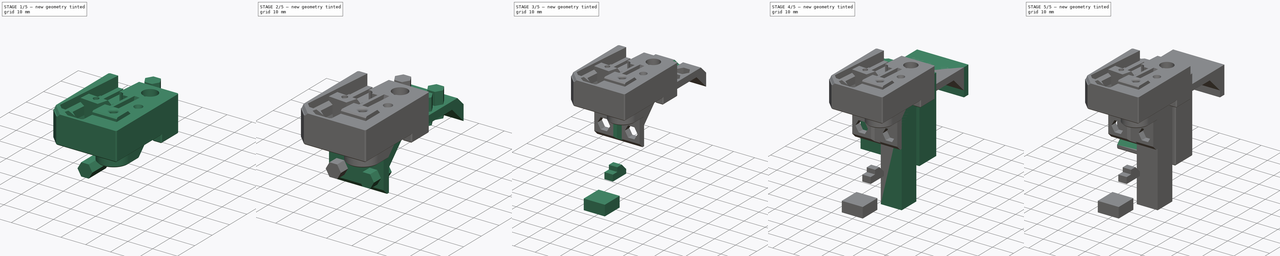
[diagram: build sequence overview — one tinted view per stage of 5, left to right]
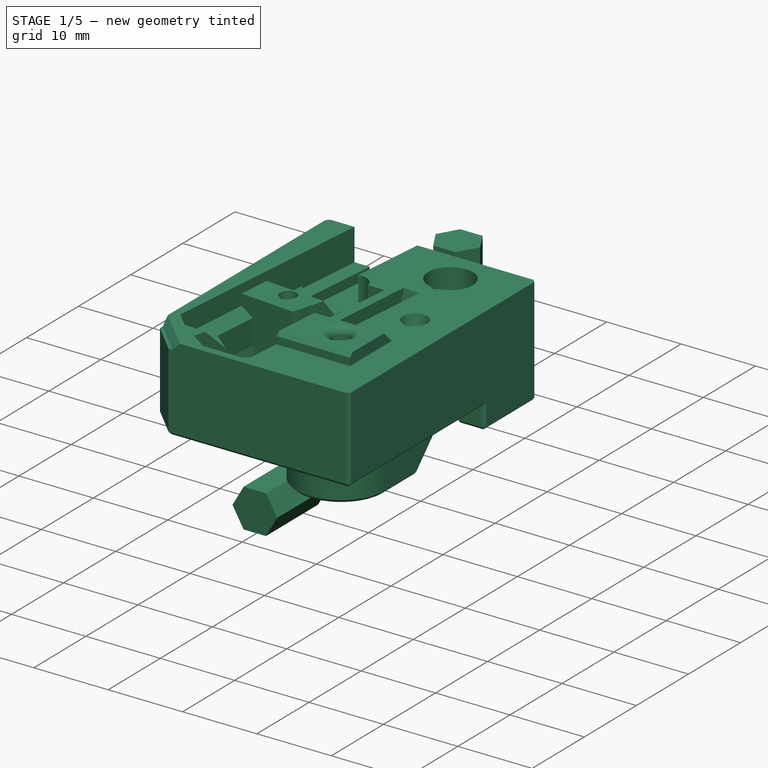
[diagram: stage 1 of 5 — iso view after this stage's code; geometry added in this stage tinted green]
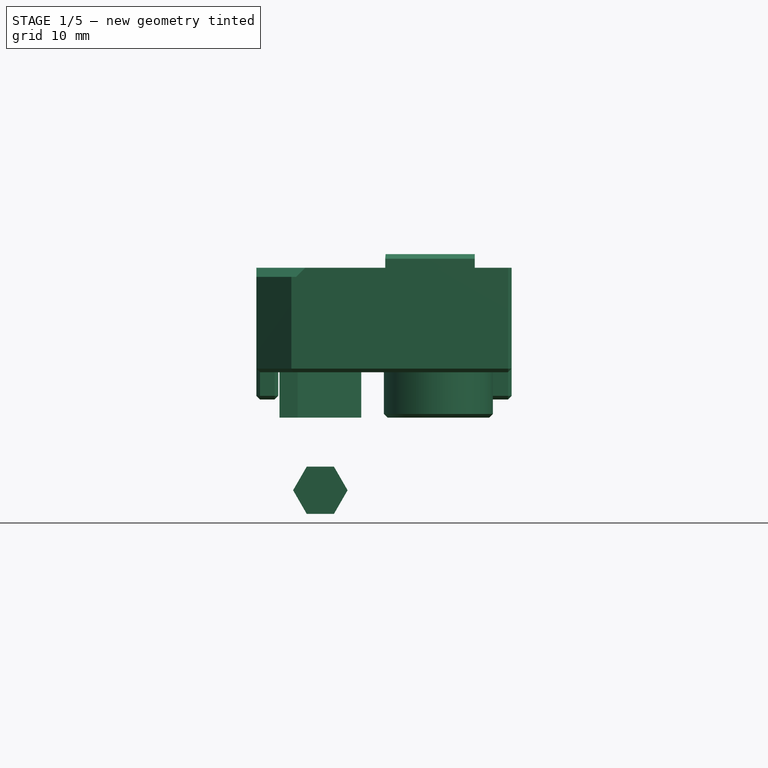
[diagram: stage 1 of 5 — front view after this stage's code; geometry added in this stage tinted green]
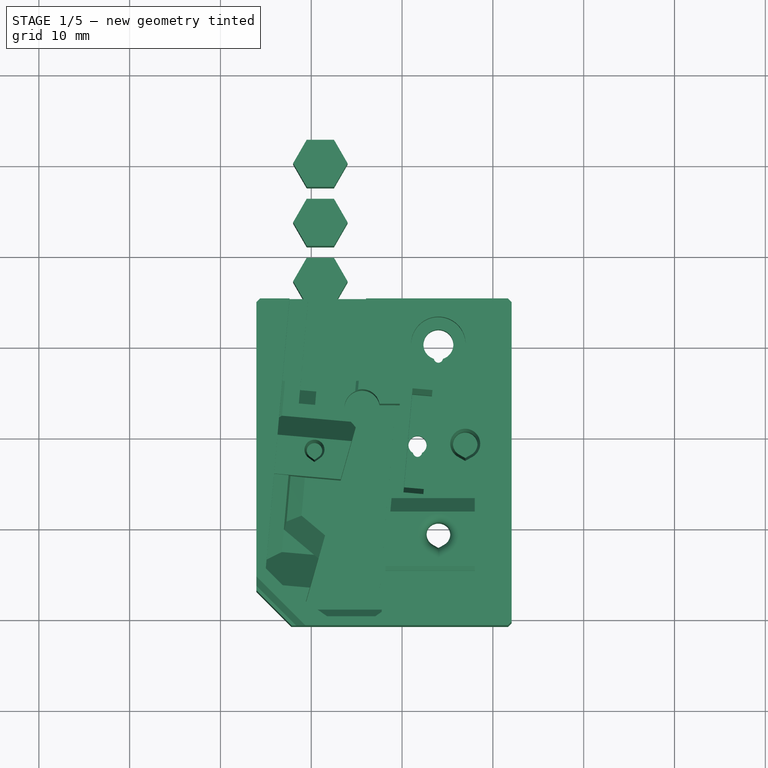
[diagram: stage 1 of 5 — top view after this stage's code; geometry added in this stage tinted green]
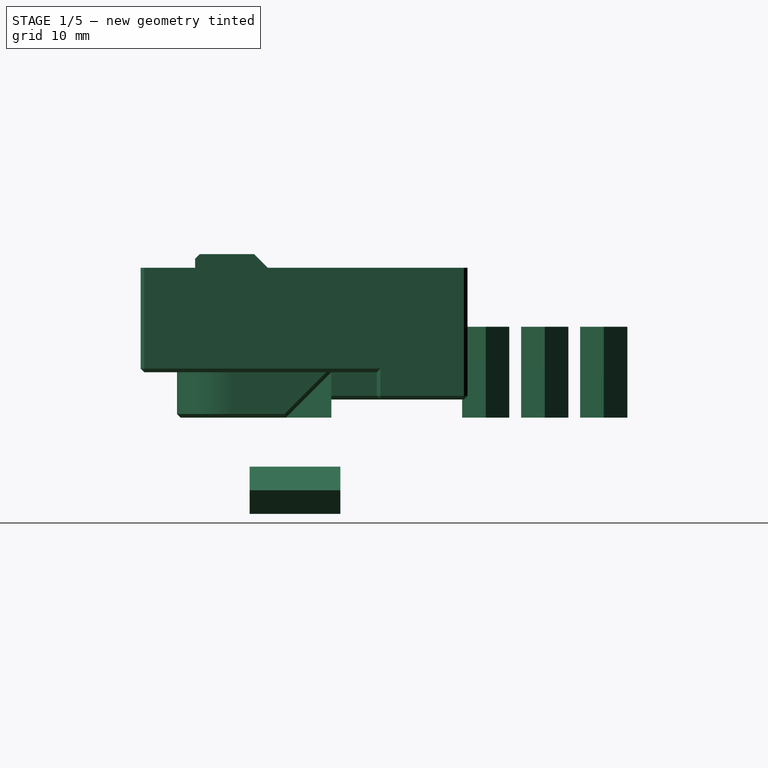
[diagram: stage 1 of 5 — right view after this stage's code; geometry added in this stage tinted green]
FCSTD DOCUMENT  (FreeCAD 0.18R14555 (Git shallow))
Label: filament-sensor-on-X
License: All rights reserved
LicenseURL: http://en.wikipedia.org/wiki/All_rights_reserved
objects: Part::Box×32, Part::Cut×26, Part::Chamfer×24, Part::Feature×19, Part::Cylinder×16, Part::MultiFuse×16, Sketcher::SketchObject×4, PartDesign::Pad×4, PartDesign::Body×4
note: 149 computed .brp shape members not serialized (recipe doc carries the construction recipe); baked Part::Feature solids carry a one-line shape summary decoded from their .brp

FEATURE [Part::Box] Box006  label="Cube006"
  AttacherType = Attacher::AttachEngine3D
  Height = 4
  Length = 11.5
  Placement = pos=(-20,-3,0) rot=(0,0,1;0rad)
  Width = 6
FEATURE [Part::Chamfer] Chamfer008
  Base = -> Box006
  Edges = 2 edges r=2: [Edge10,Edge12]
  Placement = pos=(4,0,3) rot=(0,0,1;0rad)
FEATURE [Part::Feature] Chamfer008001  label="Chamfer013003"
  Placement = pos=(3.5,0,3) rot=(0,0,1;0rad)
  shape: bbox 11.5 x 6 x 4 mm, 8 faces (baked)
FEATURE [Part::MultiFuse] Fusion002006
  Shapes = -> [Chamfer008001,Chamfer008]
FEATURE [Part::Box] Box015  label="Cube015"
  AttacherType = Attacher::AttachEngine3D
  Height = 10
  Length = 10
  Placement = pos=(-3.5,-6,5) rot=(0,0,1;0rad)
  Width = 10
FEATURE [Part::Chamfer] Chamfer013003  label="Chamfer013004"
  Base = -> Box015
  Edges = 1 edges r=5: [Edge4]
  Placement = pos=(-6,0,0) rot=(0,0,1;0rad)
FEATURE [Part::Cut] Cut001017003
  Base = -> Fusion002006
  Tool = -> Chamfer013003
FEATURE [PartDesign::Body] Body002004
  Group = -> [Sketch002,Pad002]
  Origin = -> Origin002
  Tip = -> Pad002
FEATURE [Part::Feature] Body002005
  Placement = pos=(4,-9,-8) rot=(1,0,0;1.5708rad)
  shape: bbox 6 x 10 x 5.196 mm, 8 faces (baked)
FEATURE [Part::Box] Box027  label="Cube027"
  AttacherType = Attacher::AttachEngine3D
  Height = 5
  Length = 9
  Placement = pos=(-13.5,-20.5,0) rot=(0,0,1;0rad)
  Width = 13
FEATURE [Part::Box] Box028  label="Cube028"
  AttacherType = Attacher::AttachEngine3D
  Height = 4
  Length = 14
  Placement = pos=(-17,-10,0) rot=(0,0,1;0rad)
  Width = 9
FEATURE [Part::Box] Box029  label="Cube029"
  AttacherType = Attacher::AttachEngine3D
  Height = 4
  Length = 3.86
  Placement = pos=(8.2,-5,2) rot=(0,0,1;0rad)
  Width = 10
FEATURE [Part::Box] Box034  label="Cube034"
  AttacherType = Attacher::AttachEngine3D
  Height = 10
  Length = 10
  Placement = pos=(-23.5,-4,0) rot=(0,0,1;0rad)
  Width = 10
FEATURE [Part::Cut] Cut001017037
  Base = -> Cut001017003
  Tool = -> Box034
FEATURE [Part::Chamfer] Chamfer013018  label="Chamfer013019"
  Base = -> Box027
  Edges = 1 edges r=7: [Edge5]
  Placement = pos=(0,3.5,0) rot=(0,0,1;0rad)
FEATURE [Part::Cut] Cut001017040
  Base = -> Chamfer013018
  Tool = -> Box028
FEATURE [PartDesign::Body] Body002008
  Group = -> [Sketch003,Pad003]
  Origin = -> Origin003
  Tip = -> Pad003
FEATURE [Part::Feature] Pad003001  label="Pad004"
  Placement = pos=(-9,7,0) rot=(0,0,1;0rad)
  shape: bbox 6 x 5.196 x 10 mm, 8 faces (baked)
FEATURE [Part::Feature] Pad003002  label="Pad005"
  Placement = pos=(-9,13.5,0) rot=(0,0,1;0rad)
  shape: bbox 6 x 5.196 x 10 mm, 8 faces (baked)
FEATURE [Part::Feature] Pad003003  label="Pad006"
  Placement = pos=(-9,20,0) rot=(0,0,1;0rad)
  shape: bbox 6 x 5.196 x 10 mm, 8 faces (baked)
FEATURE [Part::Feature] Pad003004  label="Pad007"
  Placement = pos=(-9,-9,-8) rot=(1,0,0;1.5708rad)
  shape: bbox 6 x 10 x 5.196 mm, 8 faces (baked)
FEATURE [Part::Box] Box038  label="Cube038"
  AttacherType = Attacher::AttachEngine3D
  Height = 6
  Length = 2.4
  Placement = pos=(-16.04,-17,2) rot=(0,0,1;0rad)
  Width = 22
FEATURE [Part::Chamfer] Chamfer013013  label="Chamfer013014"
  Base = -> Box029
  Edges = 8 edges r=0.4: [Edge1,Edge3,Edge4,Edge5,Edge7,Edge8,Edge9,Edge11]
FEATURE [Part::Chamfer] Chamfer013021  label="Chamfer013022"
  Base = -> Box038
  Edges = 8 edges r=0.4: [Edge1,Edge3,Edge4,Edge5,Edge7,Edge8,Edge9,Edge11]
FEATURE [Part::MultiFuse] Fusion002011011  label="filament-sensor-block"
  Shapes = -> [Cut001017001,Chamfer013021,Chamfer013013]
FEATURE [Part::MultiFuse] Fusion002011011011
  Shapes = -> [Pad003001,Pad003002,Pad003003,Pad003004]
FEATURE [Part::Cylinder] Cylinder015
  Angle = 360
  AttacherType = Attacher::AttachEngine3D
  Height = 6
  Placement = pos=(4,-23.8,0) rot=(0,0,1;0rad)
  Radius = 0.5
FEATURE [Part::Cylinder] Cylinder016
  Angle = 360
  AttacherType = Attacher::AttachEngine3D
  Height = 6
  Placement = pos=(4,-21,0) rot=(0,0,1;0rad)
  Radius = 5
FEATURE [Part::Cylinder] Cylinder017
  Angle = 360
  AttacherType = Attacher::AttachEngine3D
  Height = 6
  Placement = pos=(4,-21,0) rot=(0,0,1;0rad)
  Radius = 3.05
FEATURE [Part::MultiFuse] Fusion002011011012
  Shapes = -> [Fusion002011011,Cylinder016]
FEATURE [Part::Cut] Cut001017045
  Base = -> Fusion002011011012
  Tool = -> Cylinder017
FEATURE [Part::Cut] Cut001017046
  Base = -> Cut001017045
  Tool = -> Cylinder015
FEATURE [Part::Feature] Cut001017046001  label="Cut001017047"
  shape: bbox 28.11 x 36.01 x 18.01 mm, 190 faces (baked)
FEATURE [Part::Feature] Cut001017044001  label="Cut001017048"
  shape: bbox 21.5 x 47 x 21 mm, 96 faces (baked)
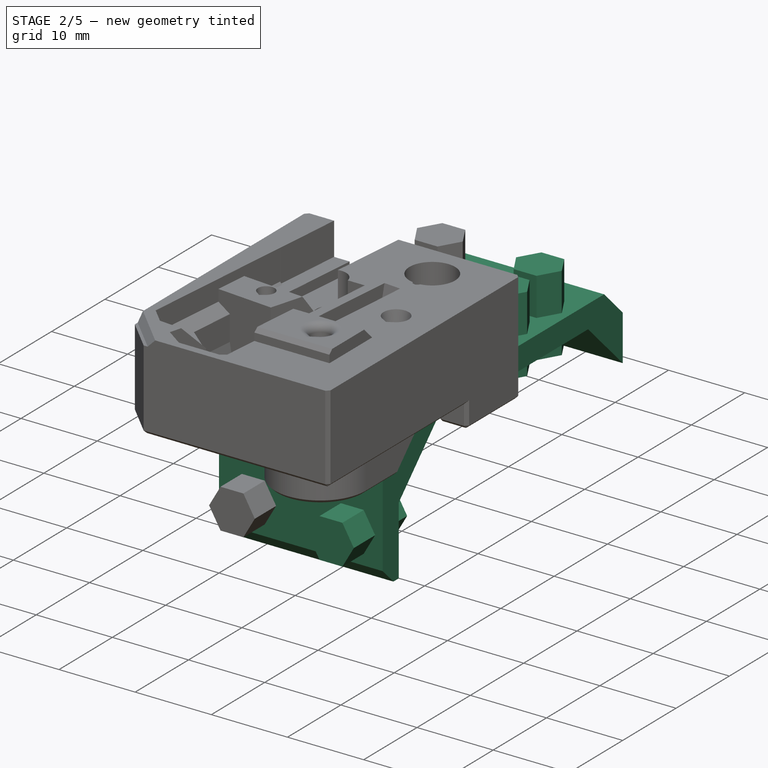
[diagram: stage 2 of 5 — iso view after this stage's code; geometry added in this stage tinted green]
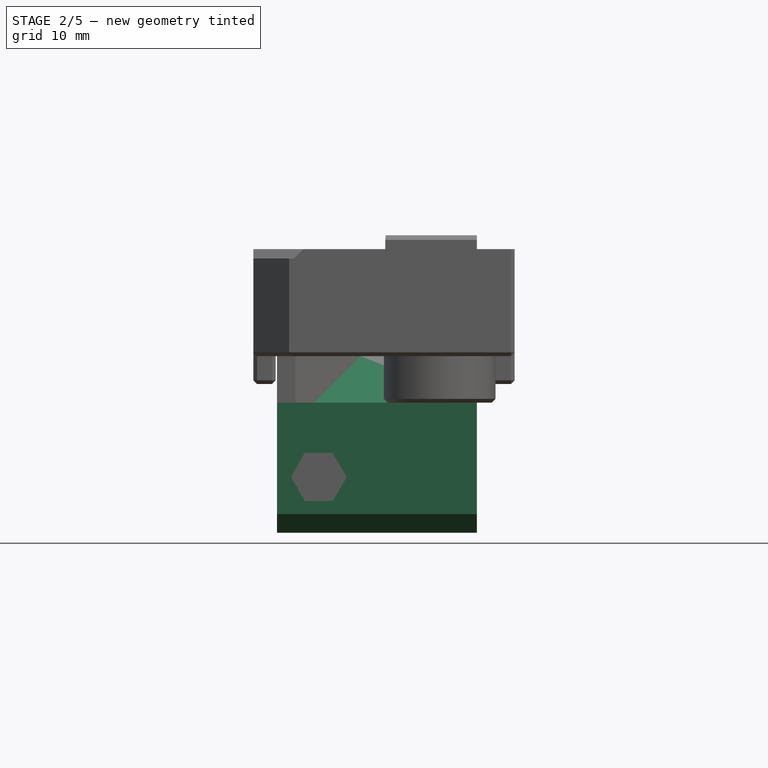
[diagram: stage 2 of 5 — front view after this stage's code; geometry added in this stage tinted green]
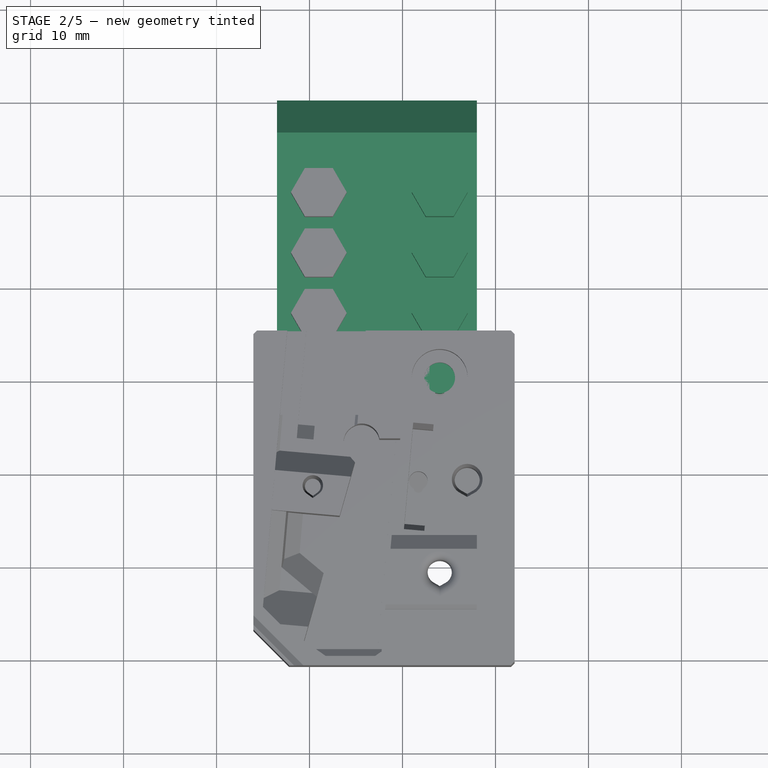
[diagram: stage 2 of 5 — top view after this stage's code; geometry added in this stage tinted green]
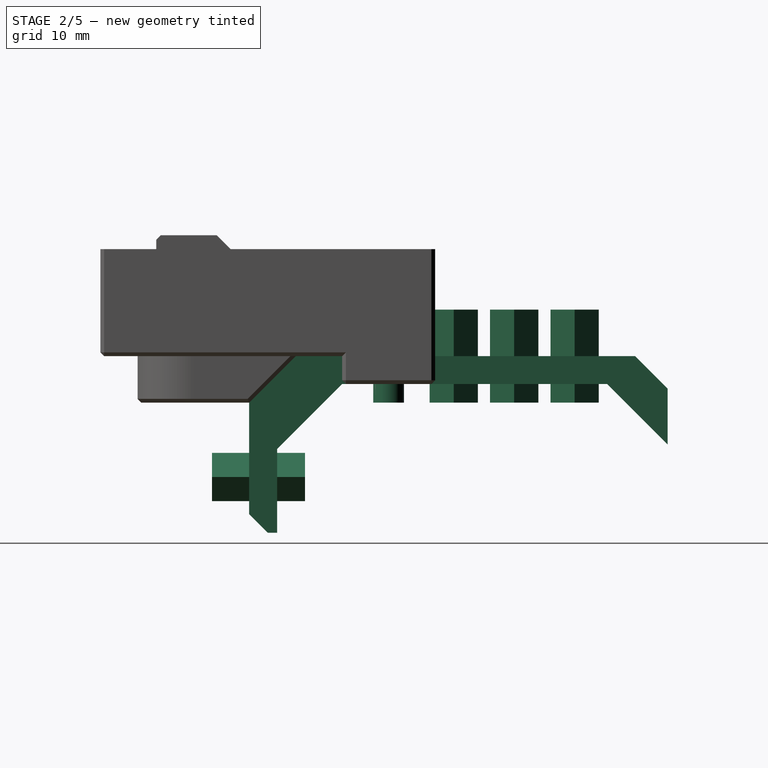
[diagram: stage 2 of 5 — right view after this stage's code; geometry added in this stage tinted green]
FEATURE [Part::Box] Box005  label="Cube005"
  AttacherType = Attacher::AttachEngine3D
  Height = 4
  Length = 8
  Placement = pos=(-4,-3,0) rot=(0,0,1;0rad)
  Width = 6
FEATURE [Part::Chamfer] Chamfer007
  Base = -> Box005
  Edges = 2 edges r=2: [Edge10,Edge12]
  Placement = pos=(4,0,3) rot=(0,0,1;0rad)
FEATURE [Part::Feature] Cut001017001  label="filament-sensor001"
  Placement = pos=(4,-21,5) rot=(1,0,0;1.5708rad)
  shape: bbox 28.11 x 36.01 x 18.44 mm, 193 faces (baked)
FEATURE [Part::Box] Box011  label="Cube011"
  AttacherType = Attacher::AttachEngine3D
  Height = 19
  Length = 24.5
  Placement = pos=(-16.5,-15,-14) rot=(0,0,1;0rad)
  Width = 19
FEATURE [Part::Box] Box012  label="Cube012"
  AttacherType = Attacher::AttachEngine3D
  Height = 19
  Length = 24.5
  Placement = pos=(-16.5,-12,-17) rot=(0,0,1;0rad)
  Width = 19
FEATURE [Part::Feature] Chamfer013001  label="Chamfer014"
  shape: bbox 24.5 x 29.5 x 13 mm, 9 faces (baked)
FEATURE [Part::Chamfer] Chamfer013002
  Base = -> Chamfer013001
  Edges = 1 edges r=7: [Edge18]
FEATURE [Part::Cylinder] Cylinder012
  Angle = 360
  AttacherType = Attacher::AttachEngine3D
  Height = 10
  Placement = pos=(4,0,0) rot=(0,0,1;0rad)
  Radius = 1.65
FEATURE [Part::Cylinder] Cylinder013
  Angle = 360
  AttacherType = Attacher::AttachEngine3D
  Height = 10
  Placement = pos=(2.5,0,0) rot=(0,0,1;0rad)
  Radius = 0.5
FEATURE [Part::MultiFuse] Fusion002007
  Shapes = -> [Cylinder012,Cylinder013]
FEATURE [Part::Box] Box017  label="Cube017"
  AttacherType = Attacher::AttachEngine3D
  Height = 10
  Length = 25
  Placement = pos=(-16.5,30,-8) rot=(0,0,1;0rad)
  Width = 10
FEATURE [Part::Cut] Cut001017026
  Base = -> Box011
  Tool = -> Box012
FEATURE [Part::Cut] Cut001017027
  Base = -> Chamfer013002
  Tool = -> Box017
FEATURE [Part::Box] Box031  label="Cube031"
  AttacherType = Attacher::AttachEngine3D
  Height = 53
  Length = 3
  Placement = pos=(-16.5,-21.5,-47) rot=(0,0,1;0rad)
  Width = 57
FEATURE [Part::Box] Box033  label="Cube033"
  AttacherType = Attacher::AttachEngine3D
  Height = 53
  Length = 3
  Placement = pos=(-16.5,-21.5,-47) rot=(0,0,1;0rad)
  Width = 57
FEATURE [Part::Cut] Cut001017028
  Base = -> Cut001017027
  Tool = -> Box031
FEATURE [Part::Cut] Cut001017030
  Base = -> Cut001017026
  Tool = -> Box033
FEATURE [Part::Chamfer] Chamfer013016  label="Chamfer013017"
  Base = -> Cut001017030
  Edges = 1 edges r=7: [Edge17]
FEATURE [Part::Chamfer] Chamfer013017  label="Chamfer013018"
  Base = -> Chamfer013016
  Edges = 1 edges r=5: [Edge17]
FEATURE [Part::Chamfer] Chamfer013023  label="Chamfer013024"
  Base = -> Chamfer013017
  Edges = 1 edges r=2: [Edge16]
FEATURE [Part::MultiFuse] Fusion002011011005
  Shapes = -> [Chamfer013023,Cut001017028]
FEATURE [Part::MultiFuse] Fusion002011011007
  Shapes = -> [Body002005,Fusion002007,Body002001,Body002002,Body002003]
FEATURE [Part::MultiFuse] Fusion002011011008
  Shapes = -> [Chamfer007,Cut001017040,Cut001017037]
FEATURE [Part::MultiFuse] Fusion002011011009
  Shapes = -> [Fusion002011011007]
FEATURE [Part::MultiFuse] Fusion002011011010
  Shapes = -> [Fusion002011011005,Fusion002011011008]
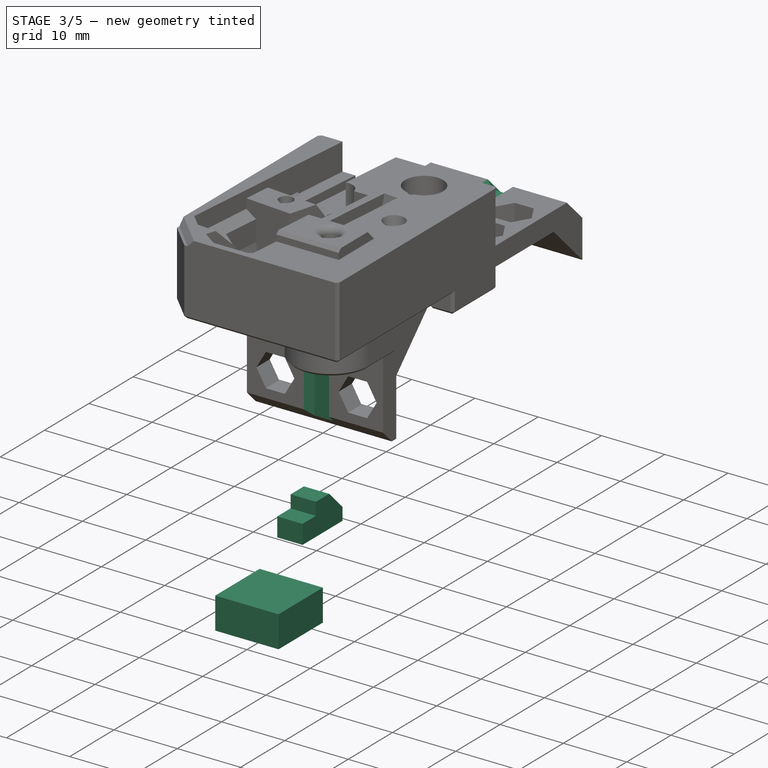
[diagram: stage 3 of 5 — iso view after this stage's code; geometry added in this stage tinted green]
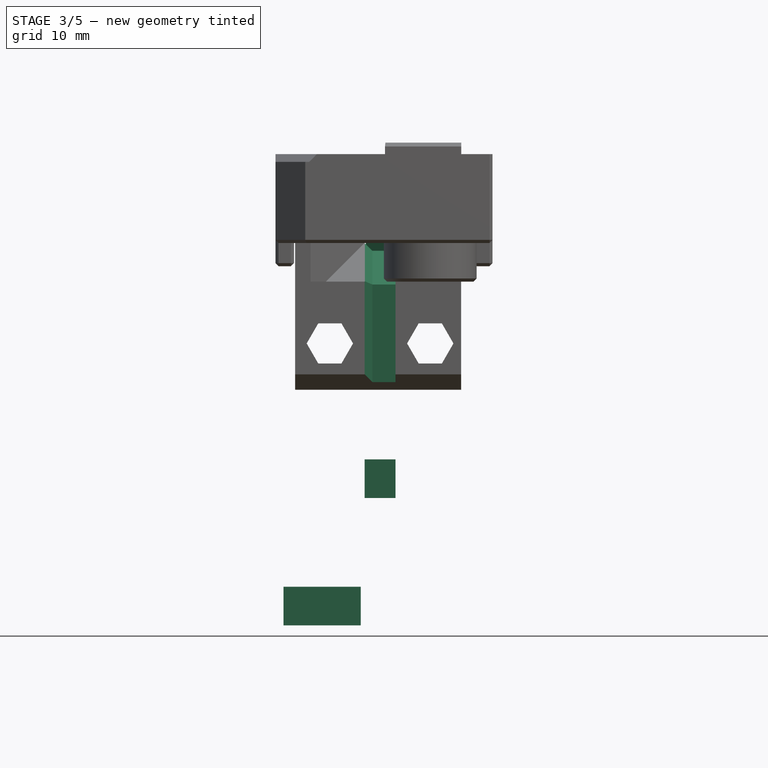
[diagram: stage 3 of 5 — front view after this stage's code; geometry added in this stage tinted green]
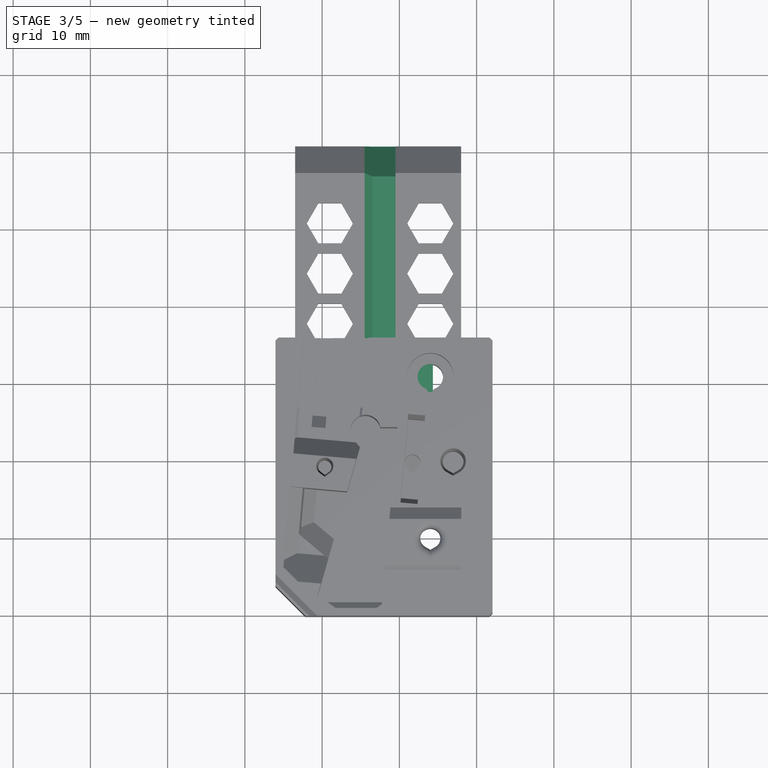
[diagram: stage 3 of 5 — top view after this stage's code; geometry added in this stage tinted green]
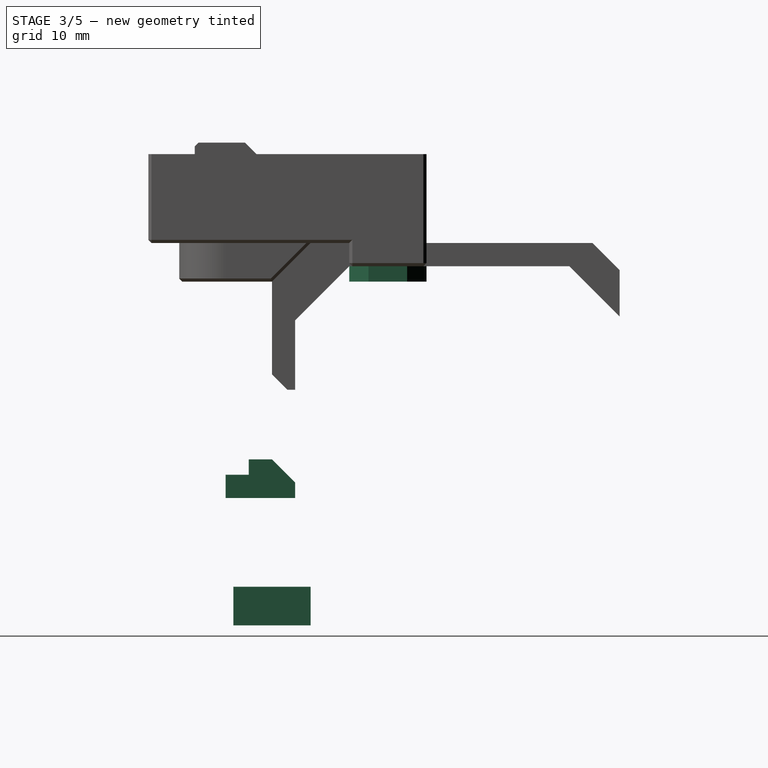
[diagram: stage 3 of 5 — right view after this stage's code; geometry added in this stage tinted green]
FEATURE [Part::Box] Box019  label="Cube019"
  AttacherType = Attacher::AttachEngine3D
  Height = 5
  Length = 10
  Placement = pos=(-15,-20,-44.5) rot=(0,0,1;0rad)
  Width = 10
FEATURE [Part::Box] Box022  label="Cube022"
  AttacherType = Attacher::AttachEngine3D
  Height = 3
  Length = 4
  Placement = pos=(-4.5,-28.5,-28) rot=(0,0,1;0rad)
  Width = 9
FEATURE [Part::Box] Box023  label="Cube023"
  AttacherType = Attacher::AttachEngine3D
  Height = 50
  Length = 4
  Placement = pos=(-4.5,-16,-41) rot=(0,0,1;0rad)
  Width = 2
FEATURE [Part::Box] Box025  label="Cube025"
  AttacherType = Attacher::AttachEngine3D
  Height = 2
  Length = 4
  Placement = pos=(-4.5,-17,3) rot=(0,0,1;0rad)
  Width = 50
FEATURE [Part::Chamfer] Chamfer013007  label="Chamfer013008"
  Base = -> Box025
  Edges = 1 edges r=1: [Edge4]
  Placement = pos=(0,0,1) rot=(0,0,1;0rad)
FEATURE [Part::Box] Box026  label="Cube026"
  AttacherType = Attacher::AttachEngine3D
  Height = 2
  Length = 4
  Placement = pos=(-4.5,-15.9393,-2.3033) rot=(1,0,0;0.785398rad)
  Width = 12
FEATURE [Part::Chamfer] Chamfer013009  label="Chamfer013010"
  Base = -> Box026
  Edges = 1 edges r=1: [Edge4]
FEATURE [Part::Box] Box024  label="Cube024"
  AttacherType = Attacher::AttachEngine3D
  Height = 2
  Length = 4
  Placement = pos=(-4.5,20.5,3) rot=(0,0,1;0rad)
  Width = 12
FEATURE [Part::Chamfer] Chamfer013010  label="Chamfer013011"
  Base = -> Box024
  Edges = 1 edges r=1: [Edge4]
  Placement = pos=(0,6.90843,18.9292) rot=(1,0,0;5.49779rad)
FEATURE [Sketcher::SketchObject] Sketch
  MapMode = 5
  Support = -> [XY_Plane]
  sketch-geometry (7):
    g0: LineSegment StartX=0 StartY=-3.2 StartZ=0 EndX=2.77128 EndY=-1.6 EndZ=0
    g1: LineSegment StartX=2.77128 StartY=-1.6 StartZ=0 EndX=2.77128 EndY=1.6 EndZ=0
    g2: LineSegment StartX=2.77128 StartY=1.6 StartZ=0 EndX=4e-16 EndY=3.2 EndZ=0
    g3: LineSegment StartX=4e-16 StartY=3.2 StartZ=0 EndX=-2.77128 EndY=1.6 EndZ=0
    g4: LineSegment StartX=-2.77128 StartY=1.6 StartZ=0 EndX=-2.77128 EndY=-1.6 EndZ=0
    g5: LineSegment StartX=-2.77128 StartY=-1.6 StartZ=0 EndX=0 EndY=-3.2 EndZ=0
    g6: Circle [constr] CenterX=0 CenterY=0 CenterZ=0 NormalX=0 NormalY=0 NormalZ=1 AngleXU=0 Radius=3.2
  constraints (13):
    c: Coincident(g0,g1)
    c: Coincident(g1,g2)
    c: Coincident(g2,g3)
    c: Coincident(g3,g4)
    c: Coincident(g4,g5)
    c: Coincident(g5,g0)
    c: Equal(g0, g1-g5) x5
    c: PointOnObject(g0,g6)
    c: PointOnObject(g1,g6)
    c: PointOnObject(g2,g6)
    c: PointOnObject(g3,g6)
    c: PointOnObject(g4,g6)
    c: PointOnObject(g5,g6)
FEATURE [PartDesign::Pad] Pad
  Length = 3
  Length2 = 100
  Profile = -> Sketch
  Type = 0
FEATURE [PartDesign::Body] Body
  Group = -> [Sketch,Pad]
  Origin = -> Origin
  Tip = -> Pad
FEATURE [Part::Feature] Body001
  Placement = pos=(4,0,2) rot=(0,0,1;1.5708rad)
  shape: bbox 6.4 x 5.543 x 3 mm, 8 faces (baked)
FEATURE [Sketcher::SketchObject] Sketch001
  MapMode = 5
  Support = -> [XY_Plane001]
  sketch-geometry (7):
    g0: LineSegment StartX=-3 StartY=0 StartZ=0 EndX=-1.5 EndY=-2.59808 EndZ=0
    g1: LineSegment StartX=-1.5 StartY=-2.59808 StartZ=0 EndX=1.5 EndY=-2.59808 EndZ=0
    g2: LineSegment StartX=1.5 StartY=-2.59808 StartZ=0 EndX=3 EndY=-4e-16 EndZ=0
    g3: LineSegment StartX=3 StartY=-4e-16 StartZ=0 EndX=1.5 EndY=2.59808 EndZ=0
    g4: LineSegment StartX=1.5 StartY=2.59808 StartZ=0 EndX=-1.5 EndY=2.59808 EndZ=0
    g5: LineSegment StartX=-1.5 StartY=2.59808 StartZ=0 EndX=-3 EndY=0 EndZ=0
    g6: Circle [constr] CenterX=0 CenterY=0 CenterZ=0 NormalX=0 NormalY=0 NormalZ=1 AngleXU=0 Radius=3
  constraints (13):
    c: Coincident(g0,g1)
    c: Coincident(g1,g2)
    c: Coincident(g2,g3)
    c: Coincident(g3,g4)
    c: Coincident(g4,g5)
    c: Coincident(g5,g0)
    c: Equal(g0, g1-g5) x5
    c: PointOnObject(g0,g6)
    c: PointOnObject(g1,g6)
    c: PointOnObject(g2,g6)
    c: PointOnObject(g3,g6)
    c: PointOnObject(g4,g6)
    c: PointOnObject(g5,g6)
FEATURE [PartDesign::Pad] Pad001
  Length = 10
  Length2 = 100
  Profile = -> Sketch001
  Type = 0
FEATURE [PartDesign::Body] Body002
  Group = -> [Sketch001,Pad001]
  Origin = -> Origin001
  Tip = -> Pad001
FEATURE [Part::Feature] Body002001  label="Body003"
  Placement = pos=(4,7,0) rot=(0,0,1;0rad)
  shape: bbox 6 x 5.196 x 10 mm, 8 faces (baked)
FEATURE [Part::Feature] Body002002  label="Body004"
  Placement = pos=(4,13.5,0) rot=(0,0,1;0rad)
  shape: bbox 6 x 5.196 x 10 mm, 8 faces (baked)
FEATURE [Part::Feature] Body002003  label="Body005"
  Placement = pos=(4,20,0) rot=(0,0,1;0rad)
  shape: bbox 6 x 5.196 x 10 mm, 8 faces (baked)
FEATURE [Sketcher::SketchObject] Sketch002
  MapMode = 5
  Support = -> [XY_Plane002]
  sketch-geometry (7):
    g0: LineSegment StartX=0 StartY=5 StartZ=0 EndX=-4.33013 EndY=2.5 EndZ=0
    g1: LineSegment StartX=-4.33013 StartY=2.5 StartZ=0 EndX=-4.33013 EndY=-2.5 EndZ=0
    g2: LineSegment StartX=-4.33013 StartY=-2.5 StartZ=0 EndX=-9e-16 EndY=-5 EndZ=0
    g3: LineSegment StartX=-9e-16 StartY=-5 StartZ=0 EndX=4.33013 EndY=-2.5 EndZ=0
    g4: LineSegment StartX=4.33013 StartY=-2.5 StartZ=0 EndX=4.33013 EndY=2.5 EndZ=0
    g5: LineSegment StartX=4.33013 StartY=2.5 StartZ=0 EndX=0 EndY=5 EndZ=0
    g6: Circle [constr] CenterX=0 CenterY=0 CenterZ=0 NormalX=0 NormalY=0 NormalZ=1 AngleXU=0 Radius=5
  constraints (13):
    c: Coincident(g0,g1)
    c: Coincident(g1,g2)
    c: Coincident(g2,g3)
    c: Coincident(g3,g4)
    c: Coincident(g4,g5)
    c: Coincident(g5,g0)
    c: Equal(g0, g1-g5) x5
    c: PointOnObject(g0,g6)
    c: PointOnObject(g1,g6)
    c: PointOnObject(g2,g6)
    c: PointOnObject(g3,g6)
    c: PointOnObject(g4,g6)
    c: PointOnObject(g5,g6)
FEATURE [PartDesign::Pad] Pad002
  Length = 10
  Length2 = 100
  Profile = -> Sketch002
  Type = 0
FEATURE [Part::Feature] Part__Feature050  label="fs_cover v28"
  Placement = pos=(-16.075,-31,21) rot=(0,0,1;0rad)
  shape: bbox 28.1 x 36 x 8 mm, 236 faces (baked)
FEATURE [Part::Feature] Fusion002011002  label="Fusion002013"
  shape: bbox 24.5 x 49.5 x 49.5 mm, 125 faces (baked)
FEATURE [Part::Feature] Part__Feature  label="1"
  shape: bbox 11.55 x 19.8 x 11.8 mm, 29 faces (baked)
FEATURE [Part::Cylinder] Cylinder014
  Angle = 360
  AttacherType = Attacher::AttachEngine3D
  Height = 6
  Radius = 4.5
FEATURE [Part::Cut] Cut001017025
  Base = -> Cylinder014
  Placement = pos=(0,0,3) rot=(0,0,1;0rad)
  Tool = -> Part__Feature
FEATURE [Part::Box] Box030  label="Cube030"
  AttacherType = Attacher::AttachEngine3D
  Height = 4
  Length = 4
  Placement = pos=(-4.5,-26,-28) rot=(0,0,1;0rad)
  Width = 6
FEATURE [Part::Chamfer] Chamfer013014  label="Chamfer013015"
  Base = -> Box030
  Edges = 1 edges r=3: [Edge12]
  Placement = pos=(0,8,1) rot=(0,0,1;0rad)
FEATURE [Part::Chamfer] Chamfer013019  label="Chamfer013020"
  Base = -> Box022
  Edges = 1 edges r=2: [Edge12]
  Placement = pos=(0,7.5,0) rot=(0,0,1;0rad)
FEATURE [Sketcher::SketchObject] Sketch003
  MapMode = 5
  Support = -> [XY_Plane003]
  sketch-geometry (7):
    g0: LineSegment StartX=3 StartY=0 StartZ=0 EndX=1.5 EndY=2.59808 EndZ=0
    g1: LineSegment StartX=1.5 StartY=2.59808 StartZ=0 EndX=-1.5 EndY=2.59808 EndZ=0
    g2: LineSegment StartX=-1.5 StartY=2.59808 StartZ=0 EndX=-3 EndY=4e-16 EndZ=0
    g3: LineSegment StartX=-3 StartY=4e-16 StartZ=0 EndX=-1.5 EndY=-2.59808 EndZ=0
    g4: LineSegment StartX=-1.5 StartY=-2.59808 StartZ=0 EndX=1.5 EndY=-2.59808 EndZ=0
    g5: LineSegment StartX=1.5 StartY=-2.59808 StartZ=0 EndX=3 EndY=0 EndZ=0
    g6: Circle [constr] CenterX=0 CenterY=0 CenterZ=0 NormalX=0 NormalY=0 NormalZ=1 AngleXU=0 Radius=3
  constraints (13):
    c: Coincident(g0,g1)
    c: Coincident(g1,g2)
    c: Coincident(g2,g3)
    c: Coincident(g3,g4)
    c: Coincident(g4,g5)
    c: Coincident(g5,g0)
    c: Equal(g0, g1-g5) x5
    c: PointOnObject(g0,g6)
    c: PointOnObject(g1,g6)
    c: PointOnObject(g2,g6)
    c: PointOnObject(g3,g6)
    c: PointOnObject(g4,g6)
    c: PointOnObject(g5,g6)
FEATURE [PartDesign::Pad] Pad003
  Length = 10
  Length2 = 100
  Profile = -> Sketch003
  Type = 0
FEATURE [Part::Chamfer] Chamfer013022  label="Chamfer013023"
  Base = -> Box023
  Edges = 1 edges r=1: [Edge3]
FEATURE [Part::MultiFuse] Fusion002011011002
  Shapes = -> [Chamfer013022,Chamfer013009,Chamfer013007,Chamfer013010]
FEATURE [Part::Cut] Cut001017041
  Base = -> Fusion002011011010
  Tool = -> Fusion002011011009
FEATURE [Part::Cut] Cut001017042
  Base = -> Cut001017041
  Tool = -> Body001
FEATURE [Part::Cut] Cut001017043
  Base = -> Cut001017042
  Tool = -> Fusion002011011002
FEATURE [Part::Cut] Cut001017044
  Base = -> Cut001017043
  Tool = -> Fusion002011011011
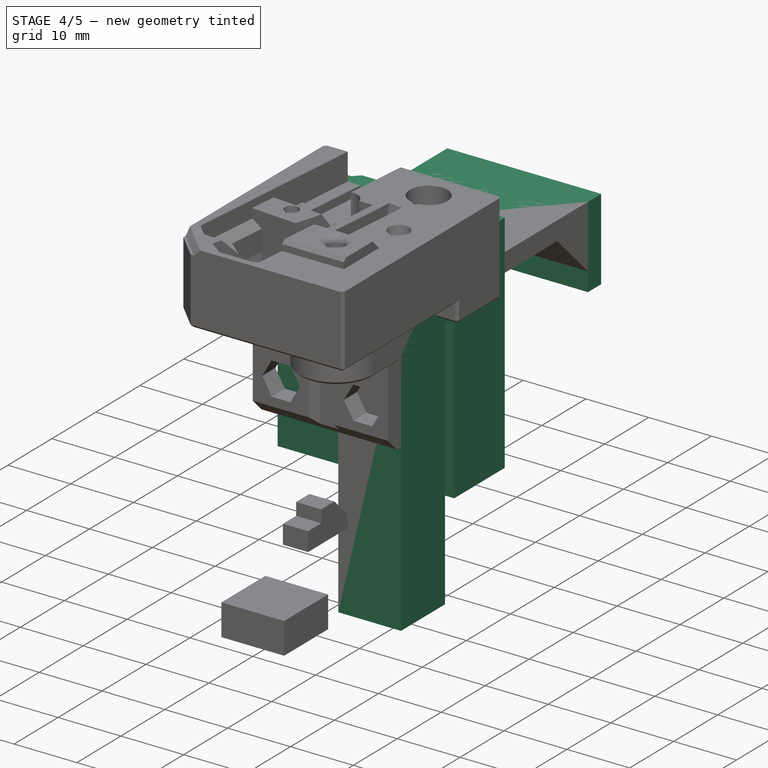
[diagram: stage 4 of 5 — iso view after this stage's code; geometry added in this stage tinted green]
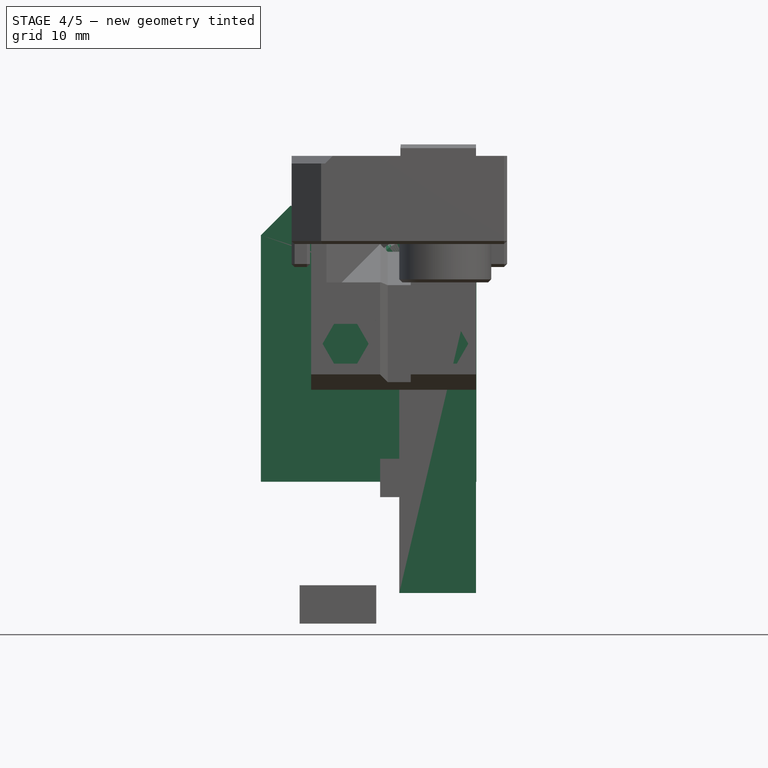
[diagram: stage 4 of 5 — front view after this stage's code; geometry added in this stage tinted green]
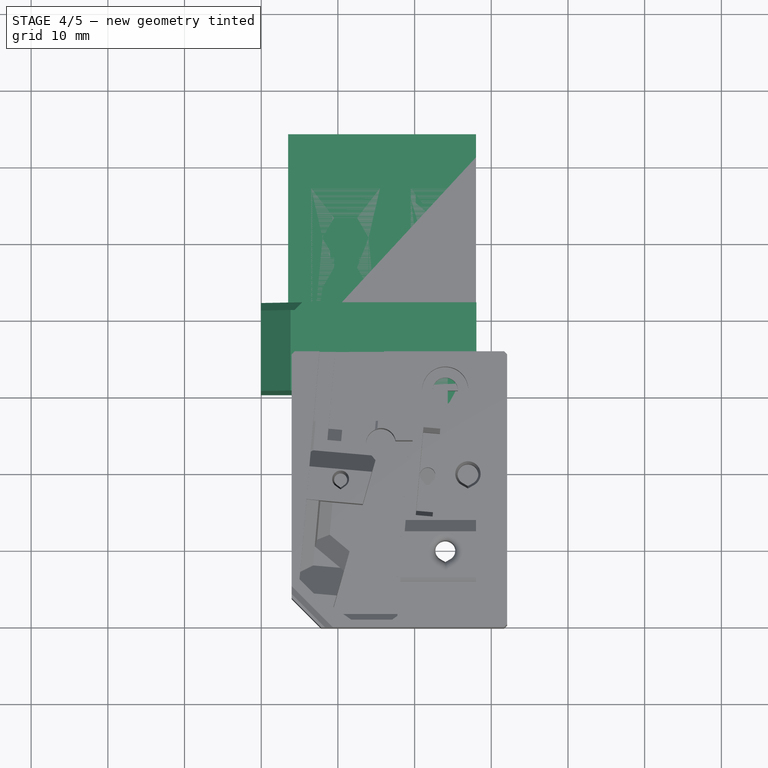
[diagram: stage 4 of 5 — top view after this stage's code; geometry added in this stage tinted green]
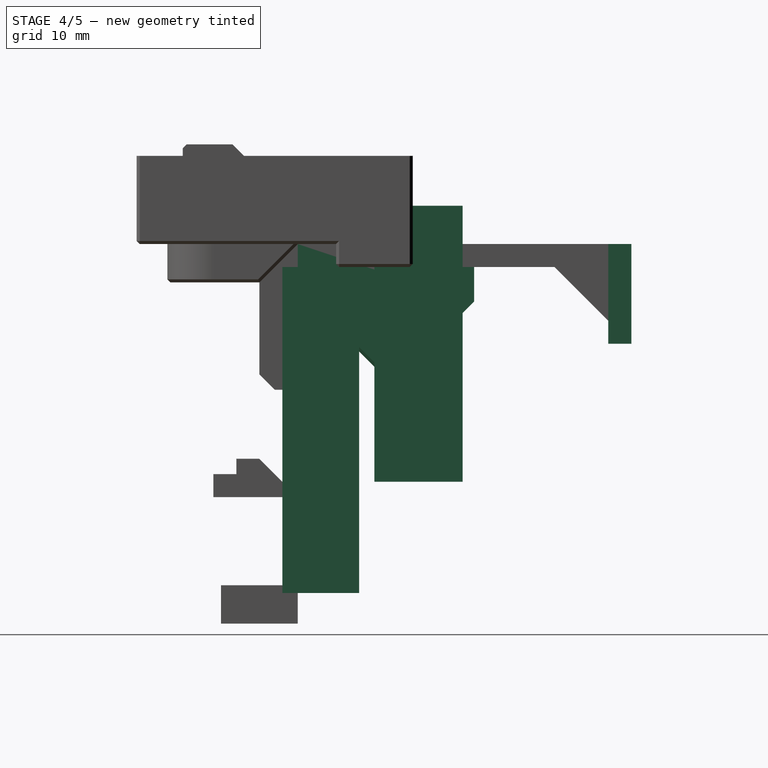
[diagram: stage 4 of 5 — right view after this stage's code; geometry added in this stage tinted green]
FEATURE [Part::Box] Box001  label="Cube001"
  AttacherType = Attacher::AttachEngine3D
  Height = 12
  Length = 12
  Placement = pos=(-6,-5,-12) rot=(0,0,1;0rad)
  Width = 5
FEATURE [Part::Cylinder] Cylinder005
  Angle = 360
  AttacherType = Attacher::AttachEngine3D
  Height = 5
  Placement = pos=(0,0,0) rot=(1,0,0;1.5708rad)
  Radius = 6
FEATURE [Part::Box] Box002  label="Cube002"
  AttacherType = Attacher::AttachEngine3D
  Height = 6
  Length = 12
  Placement = pos=(-6,-19,-12) rot=(0,0,1;0rad)
  Width = 6
FEATURE [Part::Chamfer] Chamfer002
  Base = -> Box002
  Edges = 1 edges r=5: [Edge12]
  Placement = pos=(0,13,0) rot=(0,0,1;0rad)
FEATURE [Part::Cut] Cut001007
  Base = -> Box001
  Tool = -> Chamfer002
FEATURE [Part::MultiFuse] Fusion
  Shapes = -> [Cylinder005,Cut001007]
FEATURE [Part::Chamfer] Chamfer003
  Base = -> Fusion
  Edges = 5 edges r=0.4: [Edge7,Edge10,Edge11,Edge13,Edge15]
FEATURE [Part::Cut] Cut001008
  Base = -> Chamfer003
  Tool = -> Cut001002
FEATURE [Part::Cylinder] Cylinder008
  Angle = 360
  AttacherType = Attacher::AttachEngine3D
  Height = 10
  Placement = pos=(0,5e-16,2.3) rot=(1,0,0;1.5708rad)
  Radius = 0.7
FEATURE [Part::Box] Box009  label="Cube009"
  AttacherType = Attacher::AttachEngine3D
  Height = 36
  Length = 28.1
  Placement = pos=(-20.04,0,-26) rot=(0,0,1;0rad)
  Width = 1
FEATURE [Part::Chamfer] Chamfer009
  Base = -> Box009
  Edges = 1 edges r=3.85: [Edge2]
FEATURE [Part::Cylinder] Cylinder010
  Angle = 360
  AttacherType = Attacher::AttachEngine3D
  Height = 10
  Placement = pos=(0,0,0) rot=(1,0,0;4.71239rad)
  Radius = 1.4
FEATURE [Part::Cylinder] Cylinder011
  Angle = 360
  AttacherType = Attacher::AttachEngine3D
  Height = 10
  Placement = pos=(0,-3e-16,1.2) rot=(-1,0,0;1.5708rad)
  Radius = 0.5
FEATURE [Part::Cut] Cut
  Base = -> Chamfer009
  Tool = -> Cylinder010
FEATURE [Part::Cut] Cut001009
  Base = -> Cut
  Tool = -> Cylinder011
FEATURE [Part::MultiFuse] Fusion002002
  Shapes = -> [Cut001009,Chamfer001]
FEATURE [Part::Cut] Cut001011
  Base = -> Cut001008
  Tool = -> Cylinder008
FEATURE [Part::Box] Box010  label="Cube010"
  AttacherType = Attacher::AttachEngine3D
  Height = 5
  Length = 8
  Placement = pos=(0,-10,0) rot=(0,0,1;0rad)
  Width = 15
FEATURE [Part::Box] Box013  label="Cube013"
  AttacherType = Attacher::AttachEngine3D
  Height = 13
  Length = 24.5
  Placement = pos=(-16.5,30.5,-8) rot=(0,0,1;0rad)
  Width = 3
FEATURE [Part::Box] Box014  label="Cube014"
  AttacherType = Attacher::AttachEngine3D
  Height = 3
  Length = 24.5
  Placement = pos=(-16.5,4,2) rot=(0,0,1;0rad)
  Width = 26.5
FEATURE [Part::MultiFuse] Fusion002005
  Shapes = -> [Box014,Box013]
FEATURE [Part::Chamfer] Chamfer013
  Base = -> Fusion002005
  Edges = 1 edges r=7: [Edge14]
FEATURE [Part::Box] Box016  label="Cube016"
  AttacherType = Attacher::AttachEngine3D
  Height = 42.5
  Length = 10
  Placement = pos=(-2,-12,-40.5) rot=(0,0,1;0rad)
  Width = 10
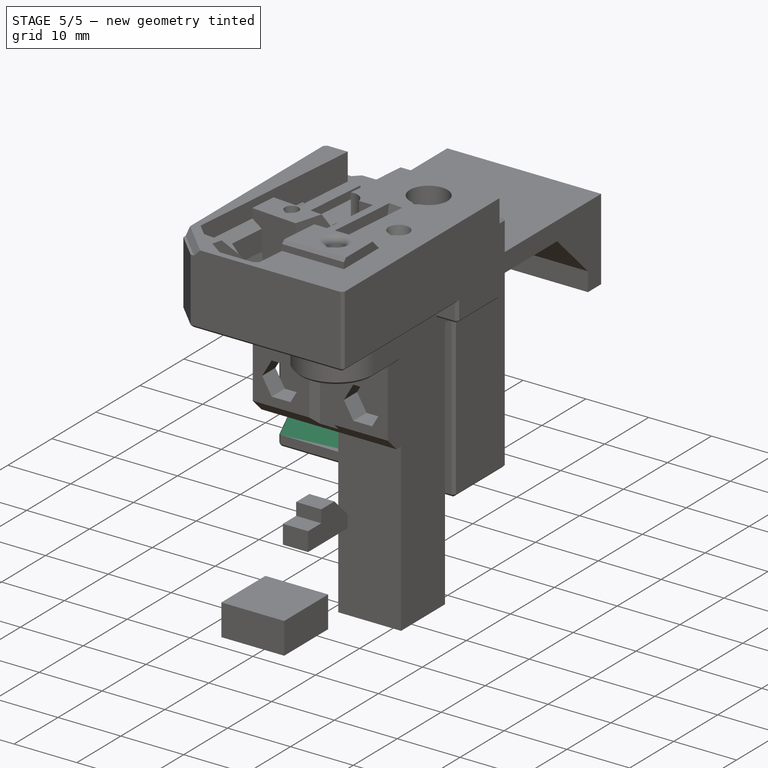
[diagram: stage 5 of 5 — iso view after this stage's code; geometry added in this stage tinted green]
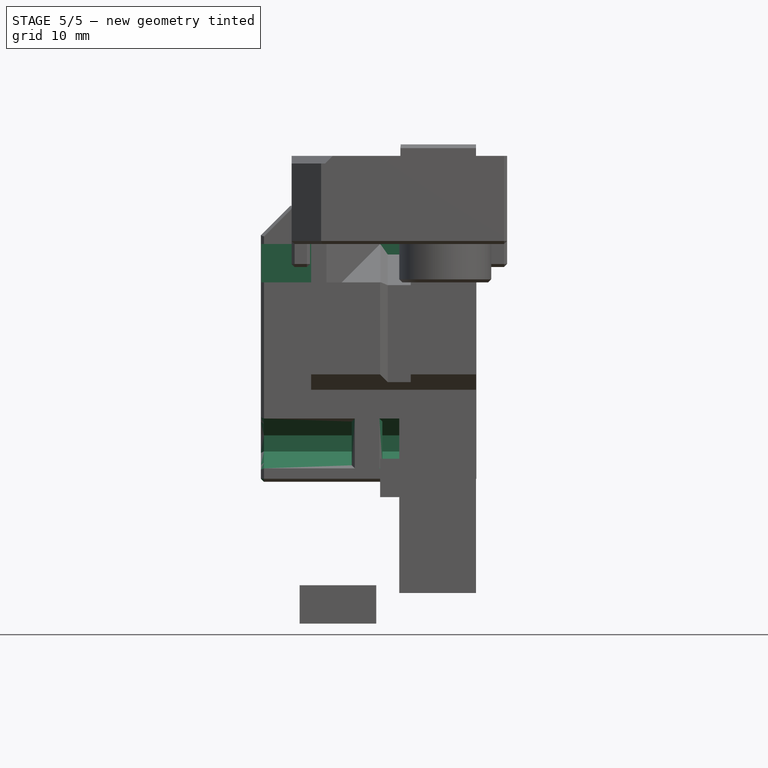
[diagram: stage 5 of 5 — front view after this stage's code; geometry added in this stage tinted green]
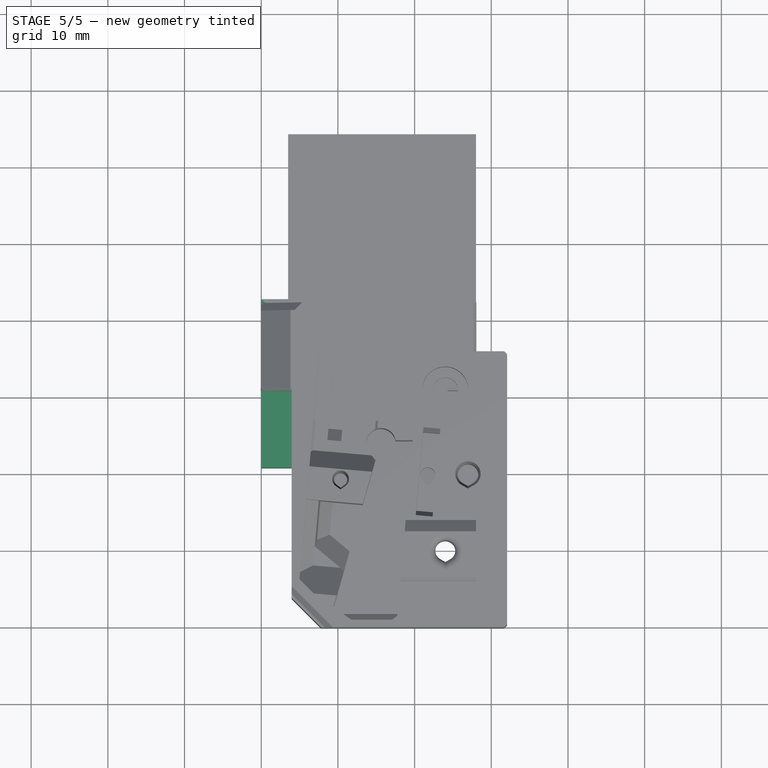
[diagram: stage 5 of 5 — top view after this stage's code; geometry added in this stage tinted green]
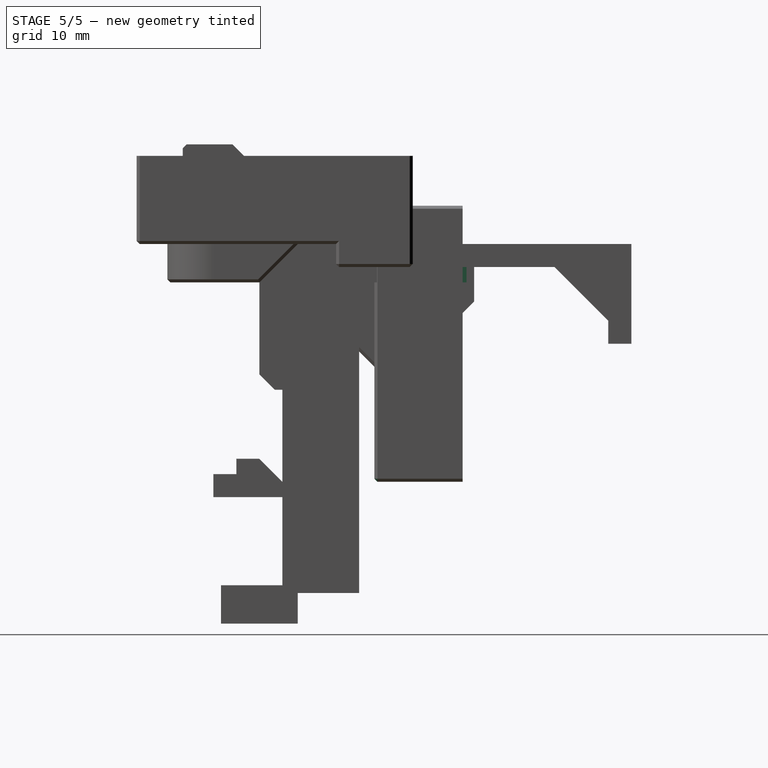
[diagram: stage 5 of 5 — right view after this stage's code; geometry added in this stage tinted green]
FEATURE [Part::Feature] Cut001002  label="m6-thread002"
  Placement = pos=(0,0,0) rot=(1,0,0;1.5708rad)
  shape: bbox 6.606 x 6.902 x 6.606 mm, 9 faces (baked)
FEATURE [Part::Feature] Chamfer001
  Placement = pos=(0,1,0) rot=(0,0,1;0rad)
  shape: bbox 28.11 x 12.01 x 36.01 mm, 120 faces (baked)
FEATURE [Part::Box] Box  label="Cube"
  AttacherType = Attacher::AttachEngine3D
  Height = 6.5
  Length = 30
  Placement = pos=(-21,-3,-25.25) rot=(0,0,1;0rad)
  Width = 5.2
FEATURE [Part::Chamfer] Chamfer
  Base = -> Box
  Edges = 2 edges r=2.2: [Edge11,Edge12]
  Placement = pos=(0,0,1) rot=(0,0,1;0rad)
FEATURE [Part::Cylinder] Cylinder
  Angle = 360
  AttacherType = Attacher::AttachEngine3D
  Height = 18
  Placement = pos=(0,-4.3e-15,-19.5) rot=(1,0,0;4.71239rad)
  Radius = 0.5
FEATURE [Part::Cylinder] Cylinder001
  Angle = 360
  AttacherType = Attacher::AttachEngine3D
  Height = 6
  Placement = pos=(0,7,-18.2) rot=(-1,0,0;1.5708rad)
  Radius = 0.5
FEATURE [Part::Cylinder] Cylinder002
  Angle = 360
  AttacherType = Attacher::AttachEngine3D
  Height = 6
  Placement = pos=(0,7,-21) rot=(-1,0,0;1.5708rad)
  Radius = 3
FEATURE [Part::Cylinder] Cylinder003
  Angle = 360
  AttacherType = Attacher::AttachEngine3D
  Height = 18
  Placement = pos=(0,-5e-15,-21) rot=(-1,0,0;1.5708rad)
  Radius = 1.65
FEATURE [Part::Box] Box003  label="Cube003"
  AttacherType = Attacher::AttachEngine3D
  Height = 9
  Length = 3.86
  Placement = pos=(4.2,0,-26) rot=(0,0,1;0rad)
  Width = 3
FEATURE [Part::Chamfer] Chamfer004
  Base = -> Box003
  Edges = 5 edges r=0.4: [Edge1,Edge5,Edge8,Edge9,Edge10]
FEATURE [Part::Cylinder] Cylinder007
  Angle = 360
  AttacherType = Attacher::AttachEngine3D
  Height = 19
  Placement = pos=(-2.3,-2.4,-10) rot=(-1,0,0;1.5708rad)
  Radius = 1
FEATURE [Part::Cylinder] Cylinder009
  Angle = 360
  AttacherType = Attacher::AttachEngine3D
  Height = 19
  Placement = pos=(-2.3,-2.4,-9.2) rot=(-1,0,0;1.5708rad)
  Radius = 0.5
FEATURE [Part::Box] Box004  label="Cube004"
  AttacherType = Attacher::AttachEngine3D
  Height = 9
  Length = 4
  Placement = pos=(-8.2,0,-26) rot=(0,0,1;0rad)
  Width = 3
FEATURE [Part::Chamfer] Chamfer006
  Base = -> Box004
  Edges = 3 edges r=0.4: [Edge1,Edge5,Edge9]
FEATURE [Part::Box] Box007  label="Cube007"
  AttacherType = Attacher::AttachEngine3D
  Height = 5
  Length = 26
  Placement = pos=(-20,-10,0) rot=(0,0,1;0rad)
  Width = 22
FEATURE [Part::Box] Box008  label="Cube008"
  AttacherType = Attacher::AttachEngine3D
  Height = 16
  Length = 6
  Placement = pos=(2,-10,-11) rot=(0,0,1;0rad)
  Width = 5
FEATURE [Part::Cut] Cut001010
  Base = -> Fusion002002
  Tool = -> Chamfer
FEATURE [Part::Chamfer] Chamfer010
  Base = -> Cut001010
  Edges = 23 edges r=0.4: [Edge1,Edge2,Edge4,Edge6,Edge7,Edge8,Edge9,Edge10,Edge12,Edge18,Edge19,Edge21,Edge23,Edge24,Edge26,Edge28,Edge77,Edge79,Edge81,Edge82,Edge83,Edge209,Edge211]
FEATURE [Part::MultiFuse] Fusion002003
  Shapes = -> [Chamfer006,Chamfer010,Chamfer004]
FEATURE [Part::MultiFuse] Fusion002004
  Shapes = -> [Cut001011,Fusion002003]
FEATURE [Part::Cut] Cut001012
  Base = -> Fusion002004
  Tool = -> Cylinder007
FEATURE [Part::Cut] Cut001013
  Base = -> Cut001012
  Tool = -> Cylinder009
FEATURE [Part::Cut] Cut001014
  Base = -> Cut001013
  Tool = -> Cylinder003
FEATURE [Part::Cut] Cut001015
  Base = -> Cut001014
  Tool = -> Cylinder
FEATURE [Part::Cut] Cut001016
  Base = -> Cut001015
  Tool = -> Cylinder002
FEATURE [Part::Cut] Cut001017  label="filament-sensor"
  Base = -> Cut001016
  Tool = -> Cylinder001
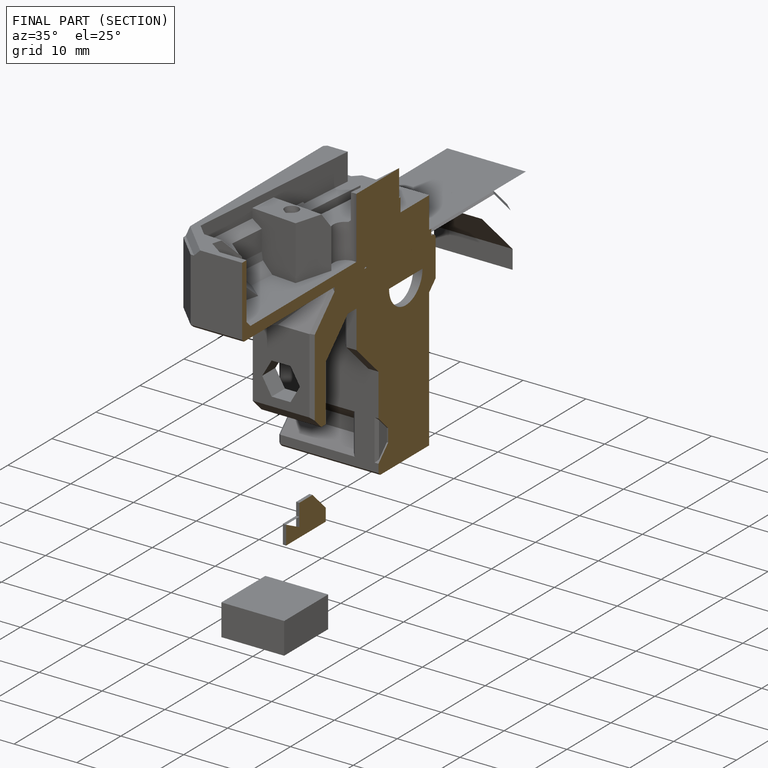
[diagram: finished part — half-section view (interior)]
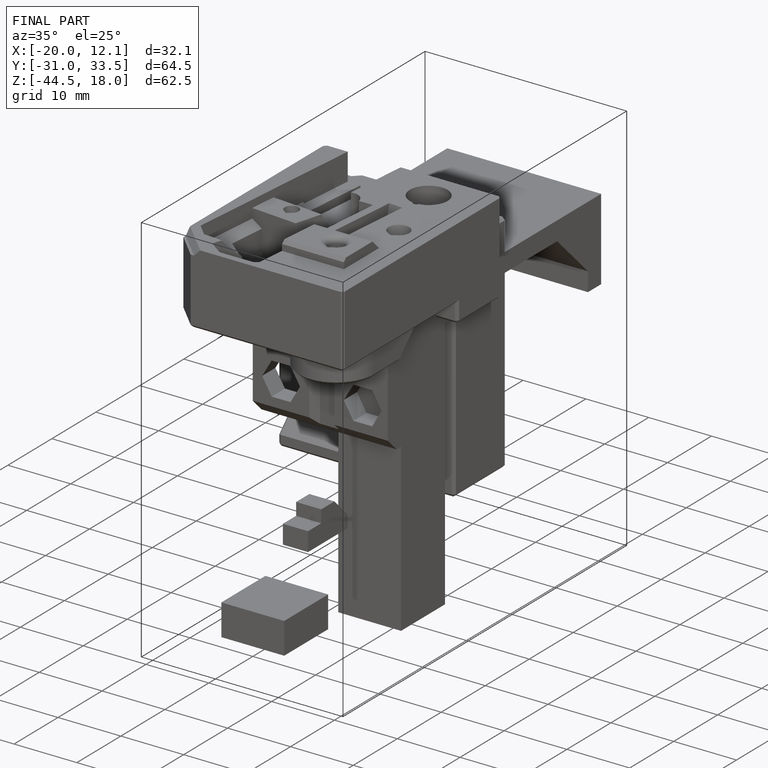
[diagram: finished part — iso view with bounding-box wireframe]
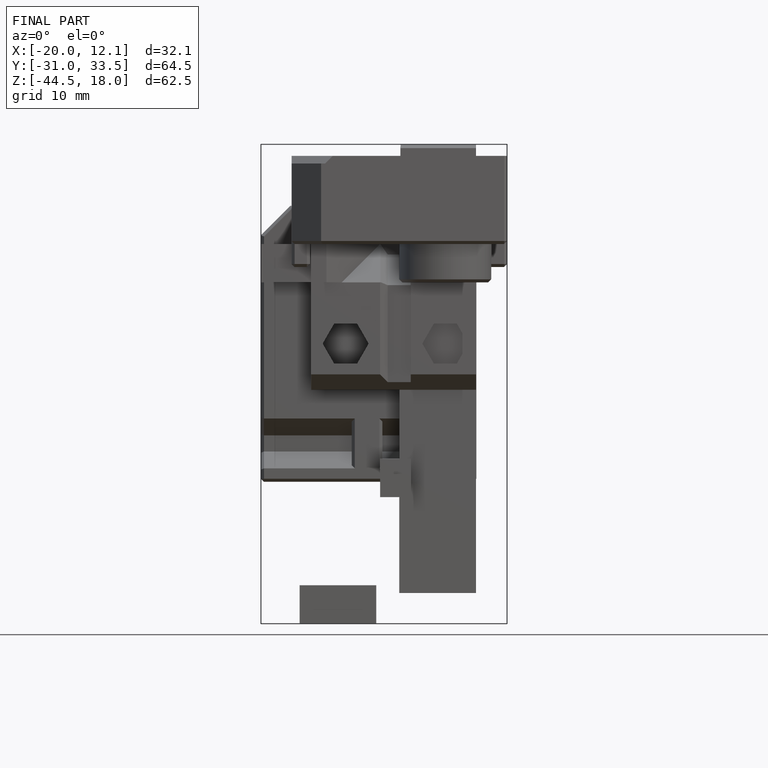
[diagram: finished part — front view with bounding-box wireframe]
